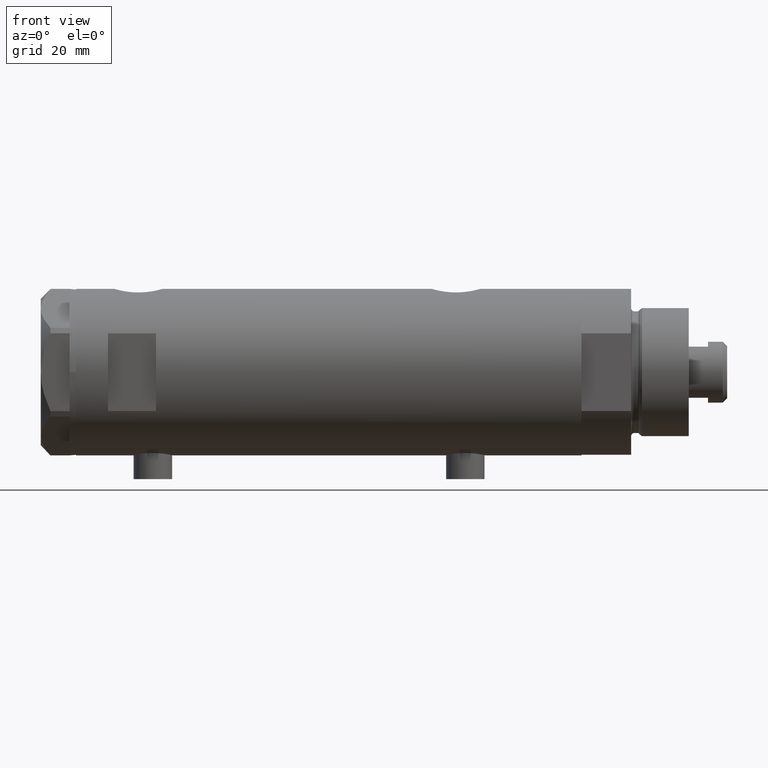
[diagram: clean part render]
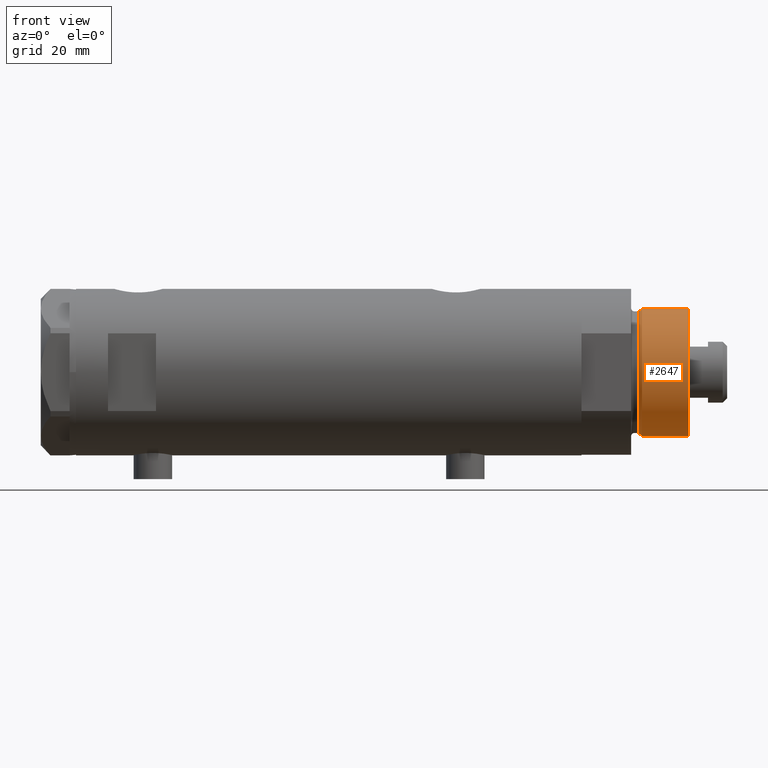
[diagram: same view with one face highlighted and labeled with its STEP entity id]
A machine part, front view. The second image highlights one B-rep face of the part: STEP entity #2647.
In plain terms, the highlighted cylindrical surface (partial cylindrical patch) has radius 20 mm, axis along (-1, -0, 0).
Its self-contained STEP definition (entity closure, byte-faithful):
#98 = DIRECTION ( 'NONE',  ( -0.000000000000000000, -0.000000000000000000, -1.000000000000000000 ) ) ;
#283 = VECTOR ( 'NONE', #447, 1000.000000000000000 ) ;
#306 = EDGE_CURVE ( 'NONE', #3386, #765, #2321, .T. ) ;
#447 = DIRECTION ( 'NONE',  ( -0.000000000000000000, -0.000000000000000000, -1.000000000000000000 ) ) ;
#528 = LINE ( 'NONE', #3496, #283 ) ;
#749 = EDGE_CURVE ( 'NONE', #765, #2630, #2695, .T. ) ;
#765 = VERTEX_POINT ( 'NONE', #2426 ) ;
#778 = CIRCLE ( 'NONE', #3106, 19.99999999999999645 ) ;
#791 = FACE_OUTER_BOUND ( 'NONE', #4568, .T. ) ;
#843 = ORIENTED_EDGE ( 'NONE', *, *, #2344, .F. ) ;
#923 = AXIS2_PLACEMENT_3D ( 'NONE', #1488, #2649, #2627 ) ;
#939 = DIRECTION ( 'NONE',  ( 1.000000000000000000, 0.000000000000000000, 0.000000000000000000 ) ) ;
#982 = CARTESIAN_POINT ( 'NONE',  ( 0.000000000000000000, 0.000000000000000000, 33.50000000000000000 ) ) ;
#1488 = CARTESIAN_POINT ( 'NONE',  ( 0.000000000000000000, 0.000000000000000000, 33.50000000000000000 ) ) ;
#1506 = CYLINDRICAL_SURFACE ( 'NONE', #923, 19.99999999999999645 ) ;
#1835 = AXIS2_PLACEMENT_3D ( 'NONE', #4820, #4392, #939 ) ;
#1932 = CARTESIAN_POINT ( 'NONE',  ( 19.99999999999999645, 2.449293598294706119E-15, 33.50000000000000000 ) ) ;
#2107 = CARTESIAN_POINT ( 'NONE',  ( -19.99999999999999645, 0.000000000000000000, 33.50000000000000000 ) ) ;
#2321 = LINE ( 'NONE', #2372, #2466 ) ;
#2344 = EDGE_CURVE ( 'NONE', #4096, #2630, #528, .T. ) ;
#2372 = CARTESIAN_POINT ( 'NONE',  ( -19.99999999999999645, 0.000000000000000000, 33.50000000000000000 ) ) ;
#2426 = CARTESIAN_POINT ( 'NONE',  ( -19.99999999999999645, 0.000000000000000000, 18.87384048104053846 ) ) ;
#2466 = VECTOR ( 'NONE', #98, 1000.000000000000000 ) ;
#2471 = DIRECTION ( 'NONE',  ( 0.000000000000000000, 0.000000000000000000, 1.000000000000000000 ) ) ;
#2627 = DIRECTION ( 'NONE',  ( -1.000000000000000000, 0.000000000000000000, 0.000000000000000000 ) ) ;
#2630 = VERTEX_POINT ( 'NONE', #4101 ) ;
#2647 = ADVANCED_FACE ( 'NONE', ( #791 ), #1506, .T. ) ;
#2649 = DIRECTION ( 'NONE',  ( -0.000000000000000000, -0.000000000000000000, -1.000000000000000000 ) ) ;
#2695 = CIRCLE ( 'NONE', #1835, 19.99999999999999645 ) ;
#3106 = AXIS2_PLACEMENT_3D ( 'NONE', #982, #2471, #3247 ) ;
#3122 = ORIENTED_EDGE ( 'NONE', *, *, #749, .T. ) ;
#3218 = ORIENTED_EDGE ( 'NONE', *, *, #4129, .F. ) ;
#3247 = DIRECTION ( 'NONE',  ( 1.000000000000000000, 0.000000000000000000, 0.000000000000000000 ) ) ;
#3386 = VERTEX_POINT ( 'NONE', #2107 ) ;
#3496 = CARTESIAN_POINT ( 'NONE',  ( 19.99999999999999645, 2.449293598294706119E-15, 33.50000000000000000 ) ) ;
#3692 = ORIENTED_EDGE ( 'NONE', *, *, #306, .T. ) ;
#4096 = VERTEX_POINT ( 'NONE', #1932 ) ;
#4101 = CARTESIAN_POINT ( 'NONE',  ( 19.99999999999999645, 2.449293598294706119E-15, 18.87384048104053846 ) ) ;
#4129 = EDGE_CURVE ( 'NONE', #3386, #4096, #778, .T. ) ;
#4392 = DIRECTION ( 'NONE',  ( -0.000000000000000000, -0.000000000000000000, 1.000000000000000000 ) ) ;
#4568 = EDGE_LOOP ( 'NONE', ( #843, #3218, #3692, #3122 ) ) ;
#4820 = CARTESIAN_POINT ( 'NONE',  ( 0.000000000000000000, 0.000000000000000000, 18.87384048104053846 ) ) ;